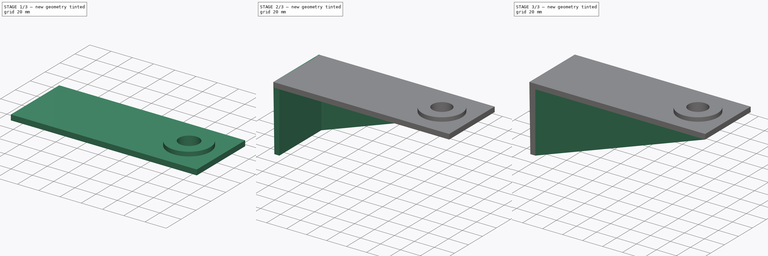
[diagram: build sequence overview — one tinted view per stage of 3, left to right]
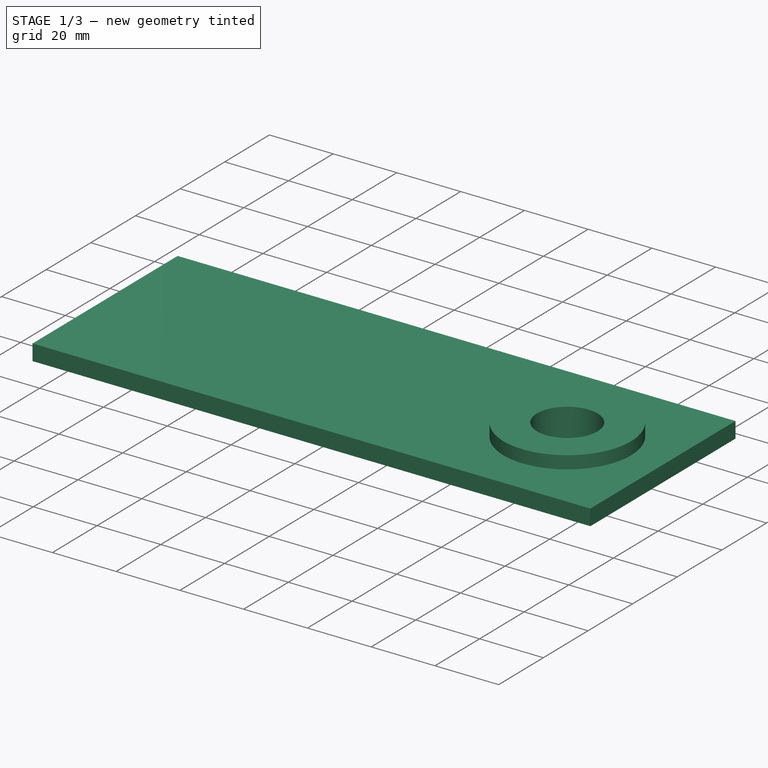
[diagram: stage 1 of 3 — iso view after this stage's code; geometry added in this stage tinted green]
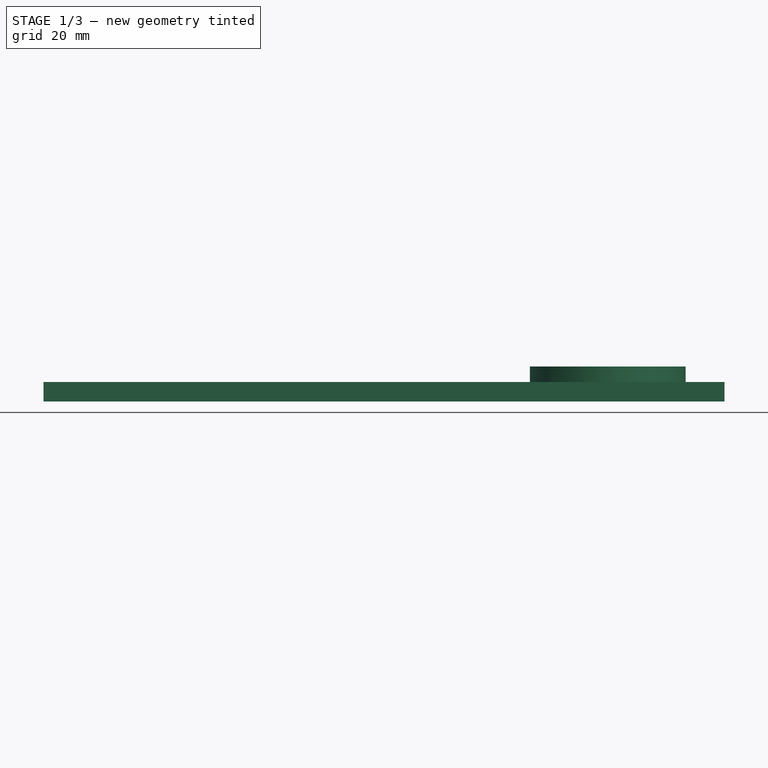
[diagram: stage 1 of 3 — front view after this stage's code; geometry added in this stage tinted green]
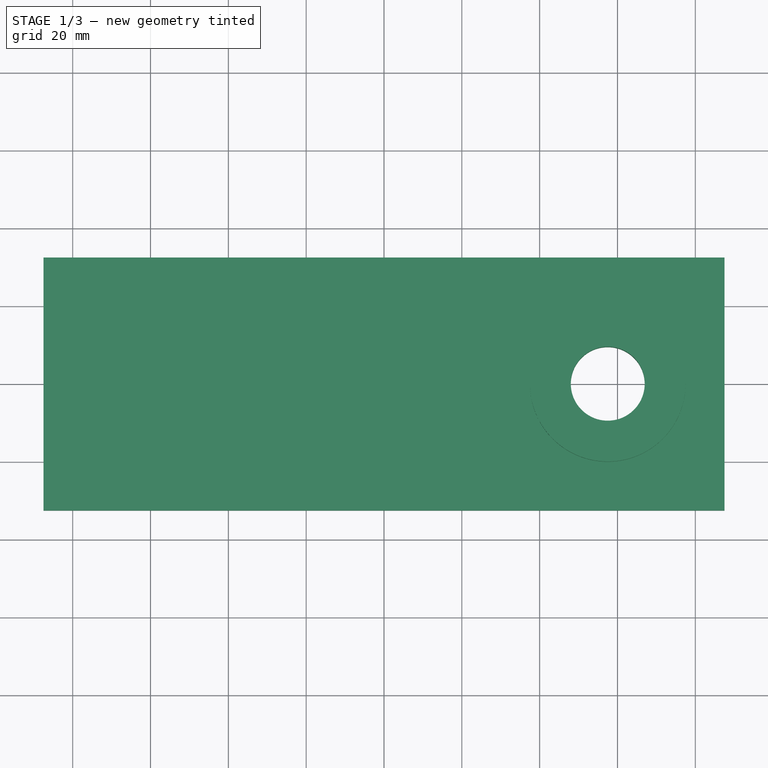
[diagram: stage 1 of 3 — top view after this stage's code; geometry added in this stage tinted green]
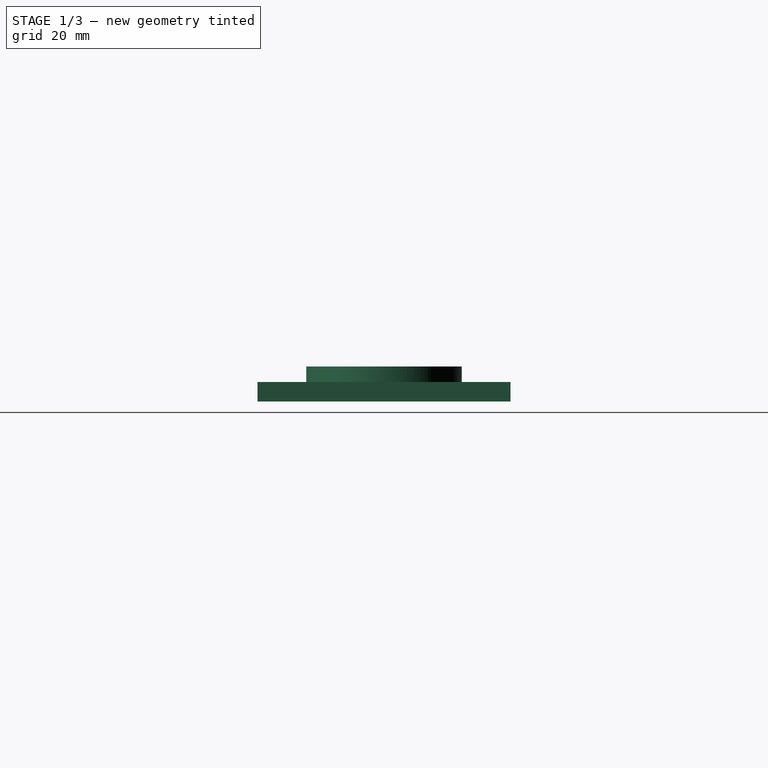
[diagram: stage 1 of 3 — right view after this stage's code; geometry added in this stage tinted green]
FCSTD DOCUMENT  (FreeCAD 0.21R33771 (Git))
Label: antenna
License: All rights reserved
LicenseURL: https://en.wikipedia.org/wiki/All_rights_reserved
objects: Sketcher::SketchObject×8, PartDesign::Pad×5, PartDesign::Pocket×3, PartDesign::Body×1
note: 25 computed .brp shape members not serialized (recipe doc carries the construction recipe); baked Part::Feature solids carry a one-line shape summary decoded from their .brp

FEATURE [Sketcher::SketchObject] Sketch
  FullyConstrained = true
  MapMode = 5
  Support = -> [XY_Plane]
  sketch-geometry (4):
    g0: LineSegment StartX=-87.5 StartY=32.5 StartZ=0 EndX=87.5 EndY=32.5 EndZ=0
    g1: LineSegment StartX=87.5 StartY=32.5 StartZ=0 EndX=87.5 EndY=-32.5 EndZ=0
    g2: LineSegment StartX=87.5 StartY=-32.5 StartZ=0 EndX=-87.5 EndY=-32.5 EndZ=0
    g3: LineSegment StartX=-87.5 StartY=-32.5 StartZ=0 EndX=-87.5 EndY=32.5 EndZ=0
  constraints (12):
    c: Coincident(g0,g1)
    c: Coincident(g1,g2)
    c: Coincident(g2,g3)
    c: Coincident(g3,g0)
    c: Horizontal(g0)
    c: Horizontal(g2)
    c: Vertical(g1)
    c: Vertical(g3)
    c: DistanceX(g2,g1) = 175
    c: DistanceY(g1,g1) = 65
    c: DistanceX(g0,g-1) = 87.5
    c: DistanceY(g2,g-1) = 32.5
FEATURE [PartDesign::Pad] Pad
  Direction = (0,0,1)
  Length = 5
  Length2 = 10
  Profile = -> Sketch
  ReferenceAxis = -> Sketch [N_Axis]
  Type = 0
FEATURE [Sketcher::SketchObject] Sketch001
  FullyConstrained = true
  MapMode = 5
  Placement = pos=(0,0,5) rot=(0,0,1;0rad)
  Support = -> [Pad]
  sketch-geometry (1):
    g0: Circle CenterX=57.5 CenterY=0 CenterZ=0 NormalX=0 NormalY=0 NormalZ=1 AngleXU=0 Radius=20
  constraints (3):
    c: Diameter(g0) = 40
    c: DistanceX(g-1,g0) = 57.5
    c: Horizontal(g-1,g0)
FEATURE [PartDesign::Pad] Pad001
  BaseFeature = -> Pad
  Direction = (0,0,1)
  Length = 4
  Length2 = 10
  Profile = -> Sketch001
  ReferenceAxis = -> Sketch001 [N_Axis]
  Type = 0
FEATURE [Sketcher::SketchObject] Sketch002
  FullyConstrained = true
  MapMode = 5
  Placement = pos=(0,0,9) rot=(0,0,1;0rad)
  Support = -> [Pad001]
  sketch-geometry (1):
    g0: Circle CenterX=57.5 CenterY=0 CenterZ=0 NormalX=0 NormalY=0 NormalZ=1 AngleXU=0 Radius=9.5
  constraints (3):
    c: PointOnObject(g0,g-1)
    c: Diameter(g0) = 19
    c: DistanceX(g-1,g0) = 57.5
FEATURE [PartDesign::Pocket] Pocket
  BaseFeature = -> Pad001
  Direction = (0,0,-1)
  Length = 9.01
  Length2 = 5
  Profile = -> Sketch002
  ReferenceAxis = -> Sketch002 [N_Axis]
  Type = 0
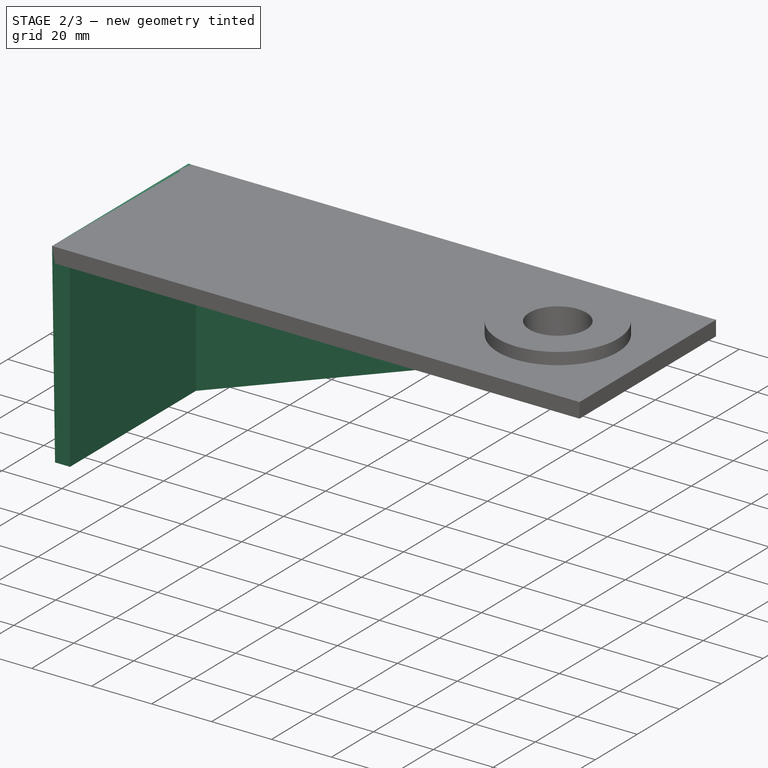
[diagram: stage 2 of 3 — iso view after this stage's code; geometry added in this stage tinted green]
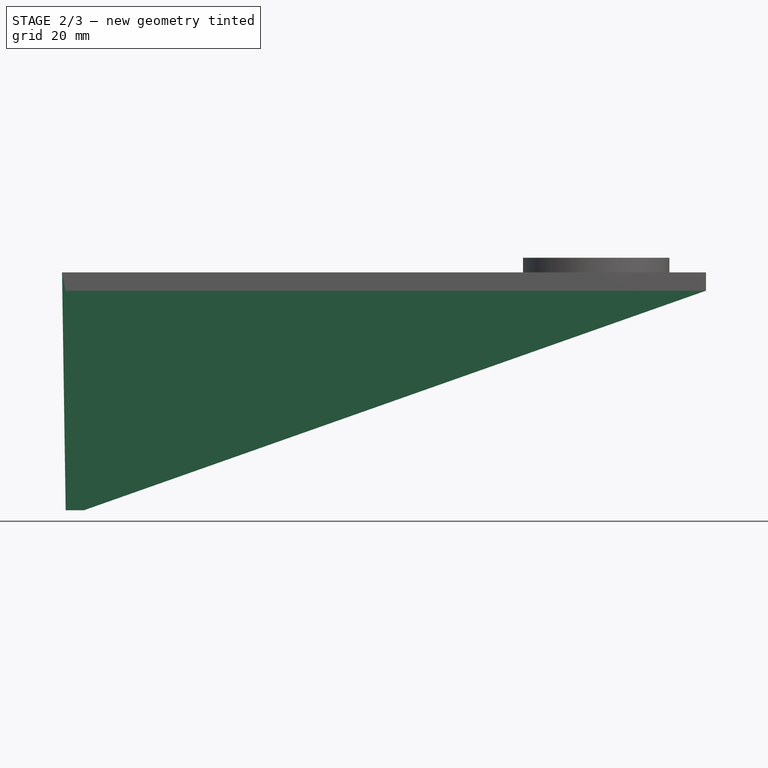
[diagram: stage 2 of 3 — front view after this stage's code; geometry added in this stage tinted green]
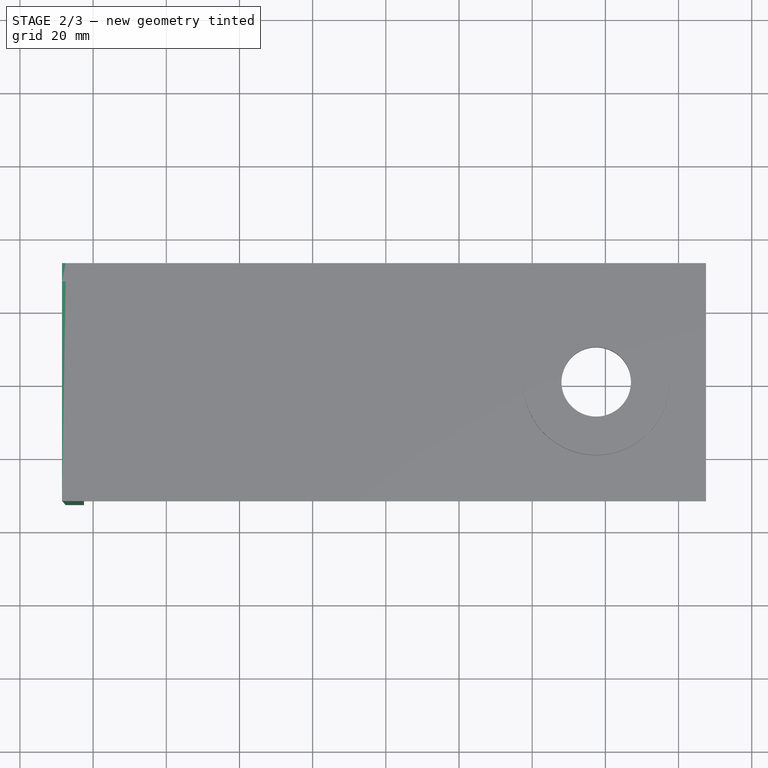
[diagram: stage 2 of 3 — top view after this stage's code; geometry added in this stage tinted green]
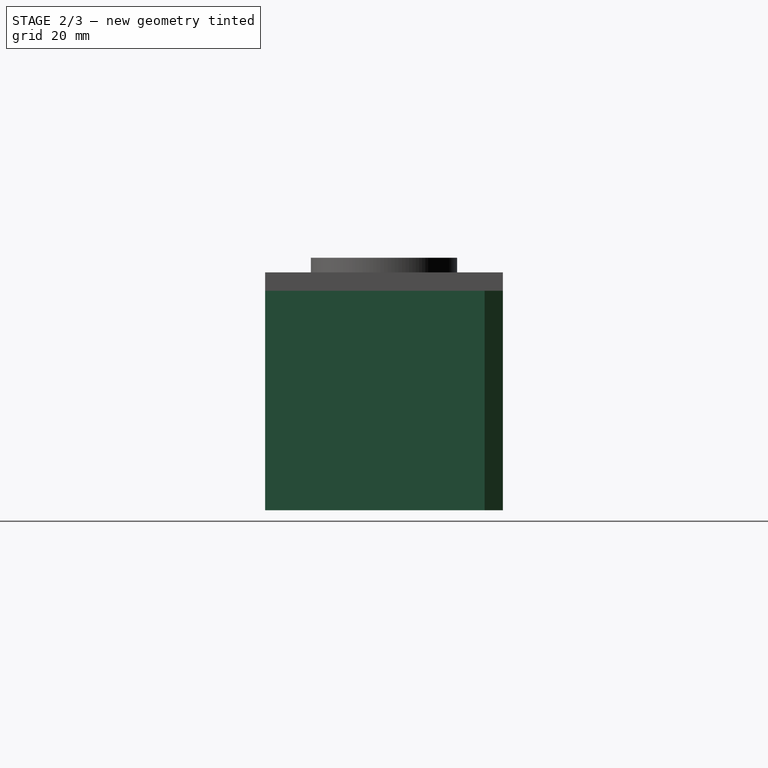
[diagram: stage 2 of 3 — right view after this stage's code; geometry added in this stage tinted green]
FEATURE [Sketcher::SketchObject] Sketch003
  FullyConstrained = true
  MapMode = 5
  Placement = pos=(0,-32.5,0) rot=(1,0,0;1.5708rad)
  Support = -> [Pocket]
  sketch-geometry (4):
    g0: LineSegment StartX=-88.5 StartY=5 StartZ=0 EndX=-87.5 EndY=-60 EndZ=0
    g1: LineSegment StartX=-87.5 StartY=-60 StartZ=0 EndX=-82.5 EndY=-60 EndZ=0
    g2: LineSegment StartX=-82.5 StartY=-60 StartZ=0 EndX=-82.5 EndY=5 EndZ=0
    g3: LineSegment StartX=-82.5 StartY=5 StartZ=0 EndX=-88.5 EndY=5 EndZ=0
  constraints (12):
    c: Coincident(g0,g1)
    c: Horizontal(g1)
    c: Coincident(g1,g2)
    c: Vertical(g2)
    c: Coincident(g2,g3)
    c: Coincident(g3,g0)
    c: Horizontal(g3)
    c: DistanceX(g0,g-1) = 87.5
    c: DistanceX(g0,g1) = 5
    c: DistanceX(g0,g2) = 6
    c: DistanceY(g1,g2) = 65
    c: DistanceY(g-1,g2) = 5
FEATURE [PartDesign::Pad] Pad002
  BaseFeature = -> Pocket
  Direction = (0,-1,2e-16)
  Length = 65
  Length2 = 10
  Profile = -> Sketch003
  ReferenceAxis = -> Sketch003 [N_Axis]
  Reversed = true
  Type = 0
FEATURE [Sketcher::SketchObject] Sketch004
  FullyConstrained = true
  MapMode = 5
  Placement = pos=(0,32.5,0) rot=(0,0.707107,0.707107;3.14159rad)
  Support = -> [Pad002]
  sketch-geometry (5):
    g0: LineSegment StartX=-87.5 StartY=5 StartZ=0 EndX=-87.5 EndY=0 EndZ=0
    g1: LineSegment StartX=-87.5 StartY=0 StartZ=0 EndX=82.5 EndY=-60 EndZ=0
    g2: LineSegment StartX=82.5 StartY=-60 StartZ=0 EndX=87.5 EndY=-60 EndZ=0
    g3: LineSegment StartX=87.5 StartY=-60 StartZ=0 EndX=88.5 EndY=5 EndZ=0
    g4: LineSegment StartX=88.5 StartY=5 StartZ=0 EndX=-87.5 EndY=5 EndZ=0
  constraints (15):
    c: PointOnObject(g0,g-1)
    c: Coincident(g0,g1)
    c: Coincident(g1,g2)
    c: Horizontal(g2)
    c: Coincident(g2,g3)
    c: Coincident(g3,g4)
    c: Coincident(g4,g0)
    c: Horizontal(g4)
    c: DistanceX(g0,g3) = 176
    c: DistanceX(g-1,g3) = 88.5
    c: DistanceX(g1,g2) = 5
    c: DistanceX(g-1,g2) = 87.5
    c: DistanceY(g2,g-1) = 60
    c: Vertical(g0)
    c: DistanceY(g0,g0) = 5
FEATURE [PartDesign::Pad] Pad003
  BaseFeature = -> Pad002
  Direction = (0,1,-2e-16)
  Length = 5
  Length2 = 10
  Profile = -> Sketch004
  ReferenceAxis = -> Sketch004 [N_Axis]
  Reversed = true
  Type = 0
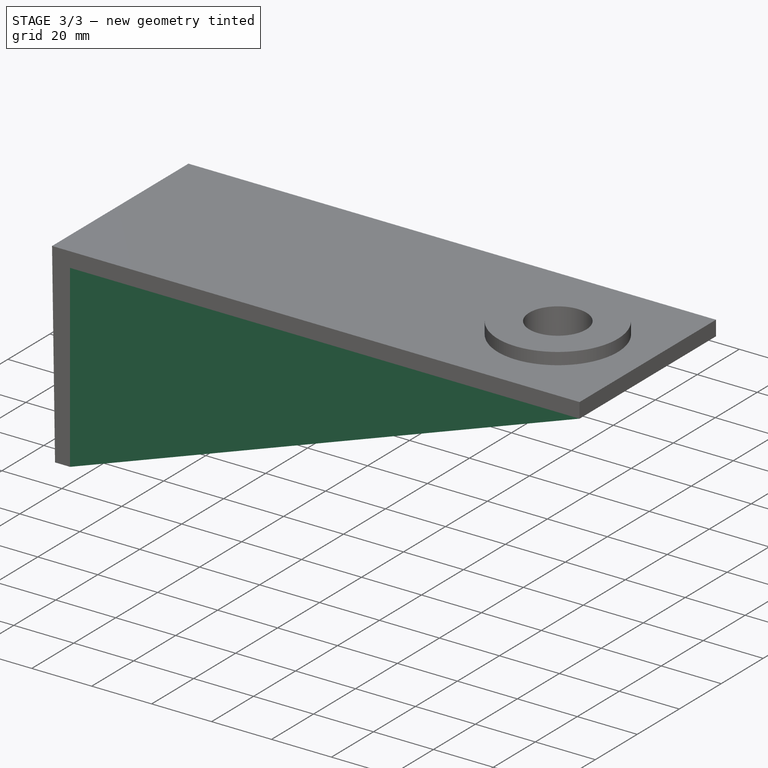
[diagram: stage 3 of 3 — iso view after this stage's code; geometry added in this stage tinted green]
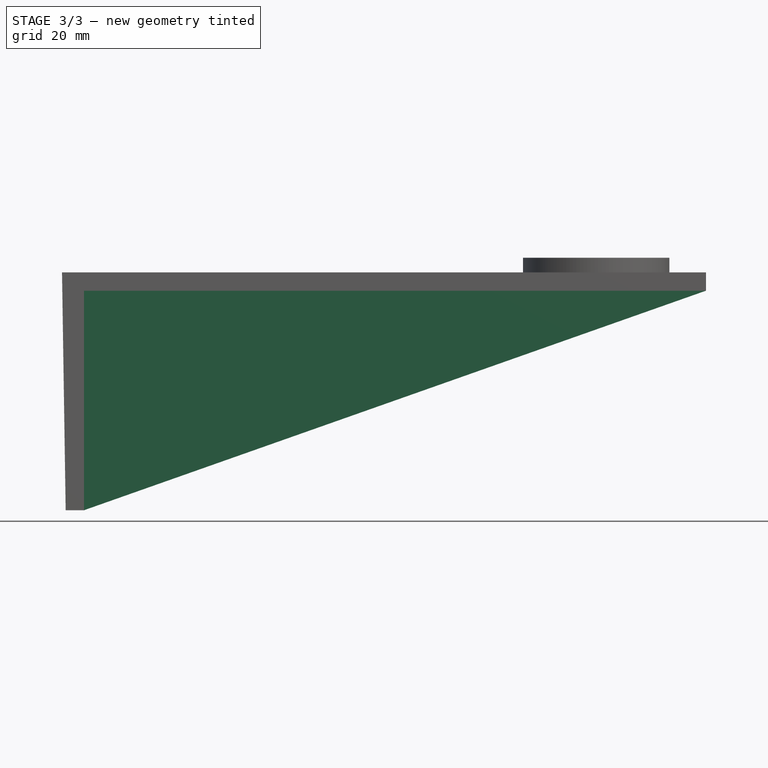
[diagram: stage 3 of 3 — front view after this stage's code; geometry added in this stage tinted green]
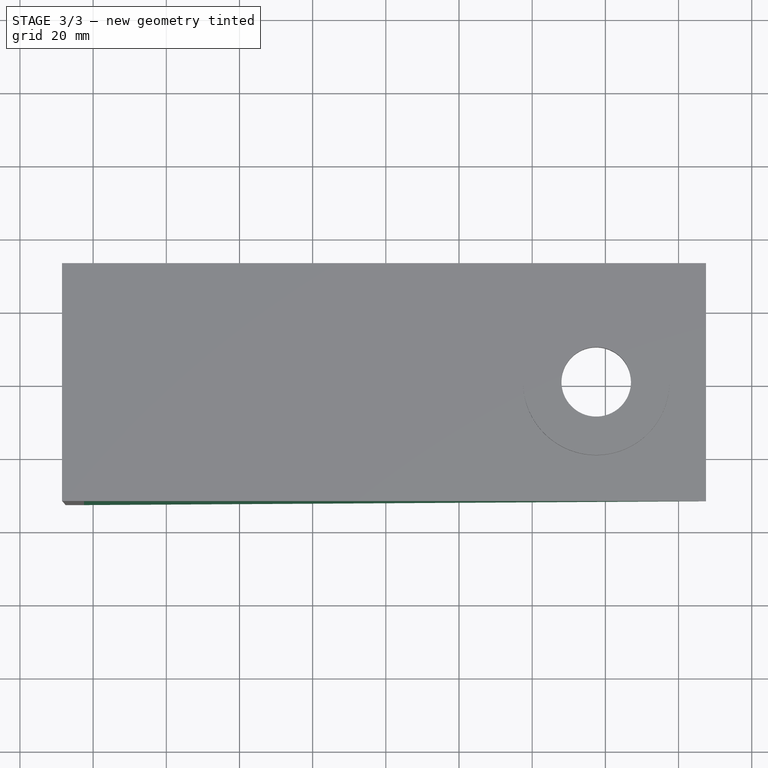
[diagram: stage 3 of 3 — top view after this stage's code; geometry added in this stage tinted green]
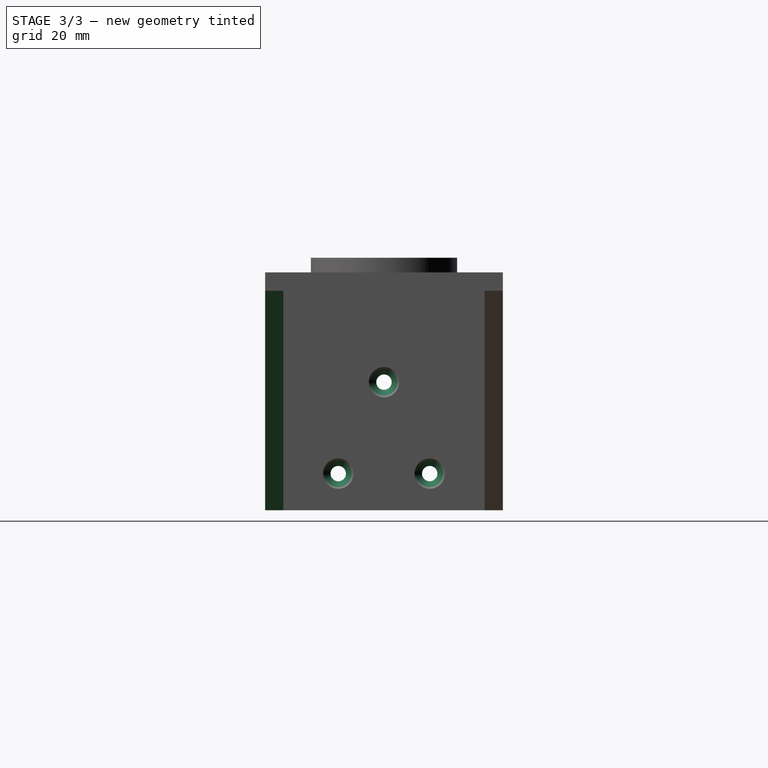
[diagram: stage 3 of 3 — right view after this stage's code; geometry added in this stage tinted green]
FEATURE [Sketcher::SketchObject] Sketch005
  FullyConstrained = true
  MapMode = 5
  Placement = pos=(0,-32.5,0) rot=(1,0,0;1.5708rad)
  Support = -> [Pad003]
  sketch-geometry (5):
    g0: LineSegment StartX=-88.5 StartY=5 StartZ=0 EndX=-87.5 EndY=-60 EndZ=0
    g1: LineSegment StartX=-87.5 StartY=-60 StartZ=0 EndX=-82.5 EndY=-60 EndZ=0
    g2: LineSegment StartX=-82.5 StartY=-60 StartZ=0 EndX=87.5 EndY=0 EndZ=0
    g3: LineSegment StartX=87.5 StartY=0 StartZ=0 EndX=87.5 EndY=5 EndZ=0
    g4: LineSegment StartX=87.5 StartY=5 StartZ=0 EndX=-88.5 EndY=5 EndZ=0
  constraints (15):
    c: Coincident(g0,g1)
    c: Horizontal(g1)
    c: Coincident(g1,g2)
    c: Coincident(g2,g3)
    c: Vertical(g3)
    c: Coincident(g3,g4)
    c: Coincident(g4,g0)
    c: Horizontal(g4)
    c: DistanceX(g0,g3) = 176
    c: DistanceX(g0,g-1) = 88.5
    c: DistanceX(g0,g-1) = 87.5
    c: DistanceX(g0,g1) = 5
    c: DistanceY(g0,g0) = 65
    c: DistanceY(g1,g-1) = 60
    c: DistanceY(g3,g3) = 5
FEATURE [PartDesign::Pad] Pad004
  BaseFeature = -> Pad003
  Direction = (0,-1,2e-16)
  Length = 5
  Length2 = 10
  Profile = -> Sketch005
  ReferenceAxis = -> Sketch005 [N_Axis]
  Reversed = true
  Type = 0
FEATURE [Sketcher::SketchObject] Sketch006
  FullyConstrained = true
  MapMode = 5
  Placement = pos=(-82.5,0,0) rot=(0.57735,0.57735,0.57735;2.0944rad)
  Support = -> [Pad004]
  sketch-geometry (6):
    g0: GeomPoint X=-12.5 Y=-50 Z=0
    g1: GeomPoint X=12.5 Y=-50 Z=0
    g2: GeomPoint X=0 Y=-25 Z=0
    g3: Circle CenterX=0 CenterY=-25 CenterZ=0 NormalX=0 NormalY=0 NormalZ=1 AngleXU=0 Radius=4.15
    g4: Circle CenterX=-12.5 CenterY=-50 CenterZ=0 NormalX=0 NormalY=0 NormalZ=1 AngleXU=0 Radius=4.15
    g5: Circle CenterX=12.5 CenterY=-50 CenterZ=0 NormalX=0 NormalY=0 NormalZ=1 AngleXU=0 Radius=4.15
  constraints (12):
    c: PointOnObject(g2,g-2)
    c: DistanceY(g0,g2) = 25
    c: Horizontal(g0,g1)
    c: DistanceX(g0,g1) = 25
    c: DistanceY(g2,g-1) = 25
    c: DistanceX(g2,g1) = 12.5
    c: Coincident(g3,g2)
    c: Coincident(g4,g0)
    c: Coincident(g5,g1)
    c: Equal(g5,g4)
    c: Equal(g5,g3)
    c: Diameter(g5) = 8.3
FEATURE [PartDesign::Pocket] Pocket001
  BaseFeature = -> Pad004
  Direction = (-1,0,0)
  Length = 2
  Length2 = 5
  Profile = -> Sketch006
  ReferenceAxis = -> Sketch006 [N_Axis]
  TaperAngle = -45
  Type = 0
FEATURE [Sketcher::SketchObject] Sketch007
  FullyConstrained = true
  MapMode = 5
  Placement = pos=(-84.5,0,0) rot=(0.57735,0.57735,0.57735;2.0944rad)
  Support = -> [Pocket001]
  sketch-geometry (3):
    g0: Circle CenterX=0 CenterY=-25 CenterZ=0 NormalX=0 NormalY=0 NormalZ=1 AngleXU=0 Radius=2.1
    g1: Circle CenterX=12.5 CenterY=-50 CenterZ=0 NormalX=0 NormalY=0 NormalZ=1 AngleXU=0 Radius=2.1
    g2: Circle CenterX=-12.5 CenterY=-50 CenterZ=0 NormalX=0 NormalY=0 NormalZ=1 AngleXU=0 Radius=2.1
  constraints (9):
    c: PointOnObject(g0,g-2)
    c: DistanceX(g2,g1) = 25
    c: DistanceY(g2,g0) = 25
    c: Horizontal(g2,g1)
    c: DistanceX(g0,g1) = 12.5
    c: DistanceY(g0,g-1) = 25
    c: Equal(g1,g2)
    c: Equal(g1,g0)
    c: Diameter(g1) = 4.2
FEATURE [PartDesign::Pocket] Pocket002
  BaseFeature = -> Pocket001
  Direction = (-1,0,0)
  Length = 5
  Length2 = 5
  Profile = -> Sketch007
  ReferenceAxis = -> Sketch007 [N_Axis]
  Type = 0
FEATURE [PartDesign::Body] Body
  Group = -> [Sketch,Pad,Sketch001,Pad001,Sketch002,Pocket,Sketch003,Pad002,Sketch004,Pad003,Sketch005,Pad004,Sketch006,Pocket001,Sketch007,Pocket002]
  Origin = -> Origin
  Tip = -> Pocket002
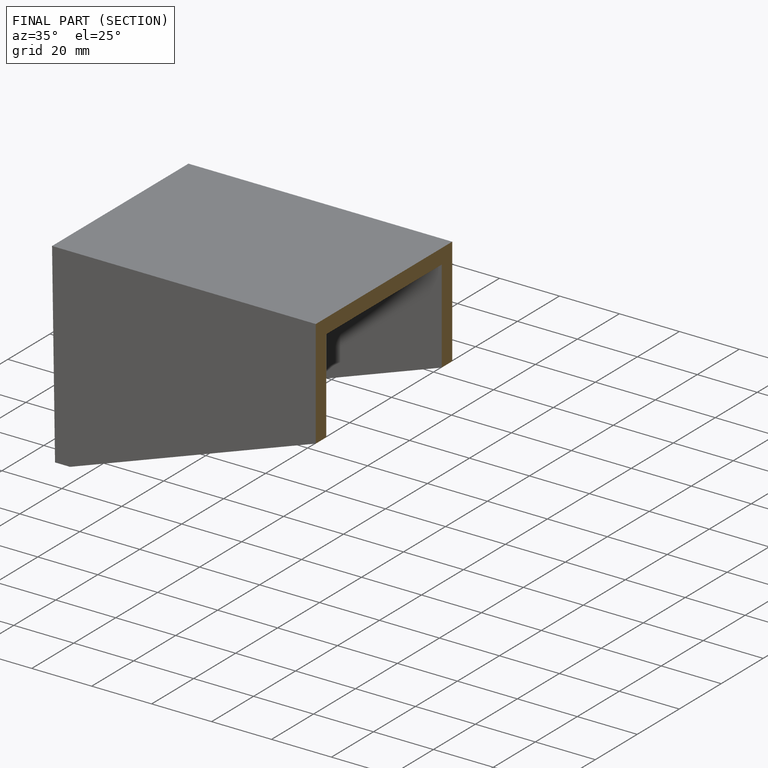
[diagram: finished part — half-section view (interior)]
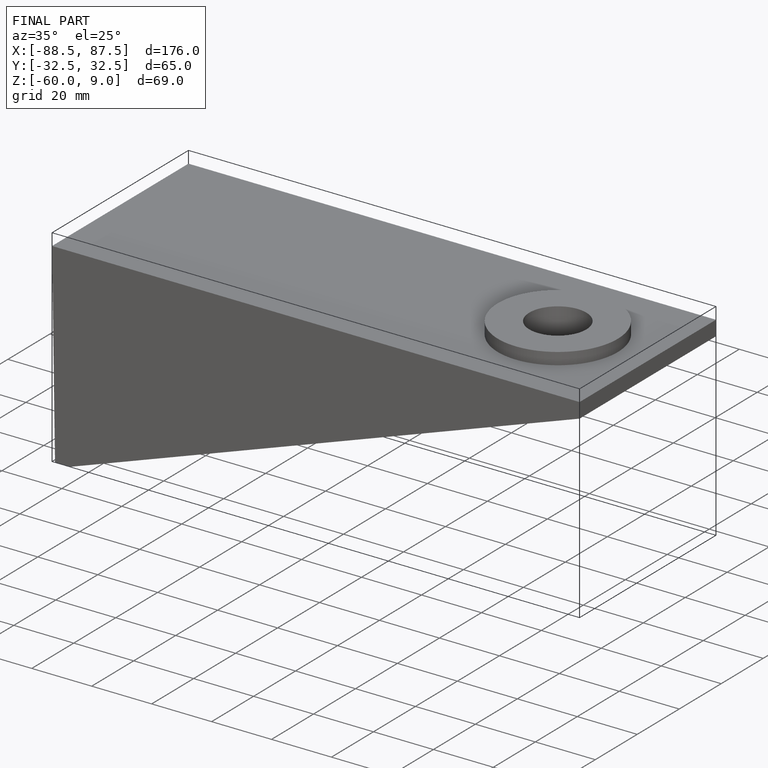
[diagram: finished part — iso view with bounding-box wireframe]
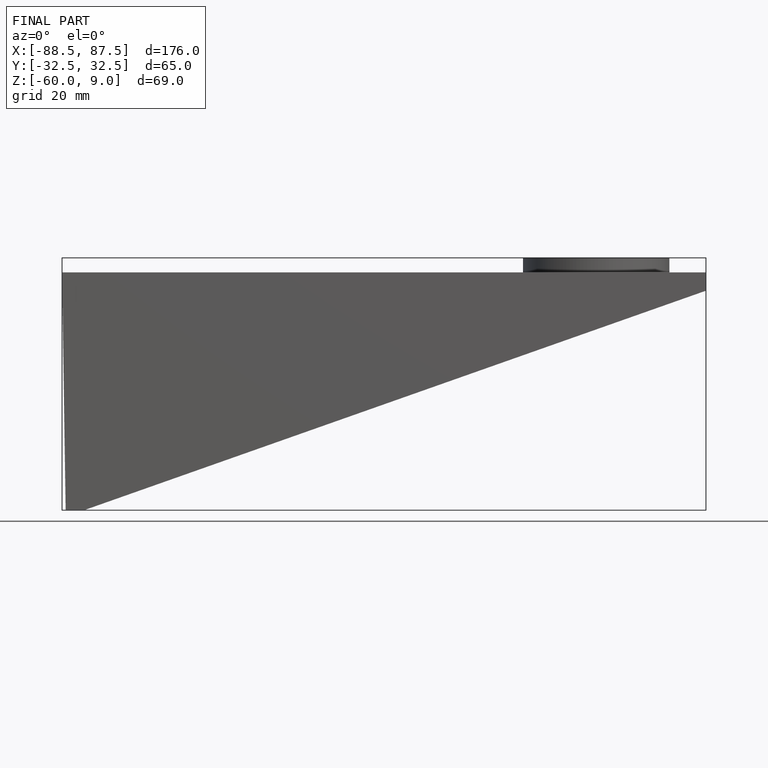
[diagram: finished part — front view with bounding-box wireframe]
